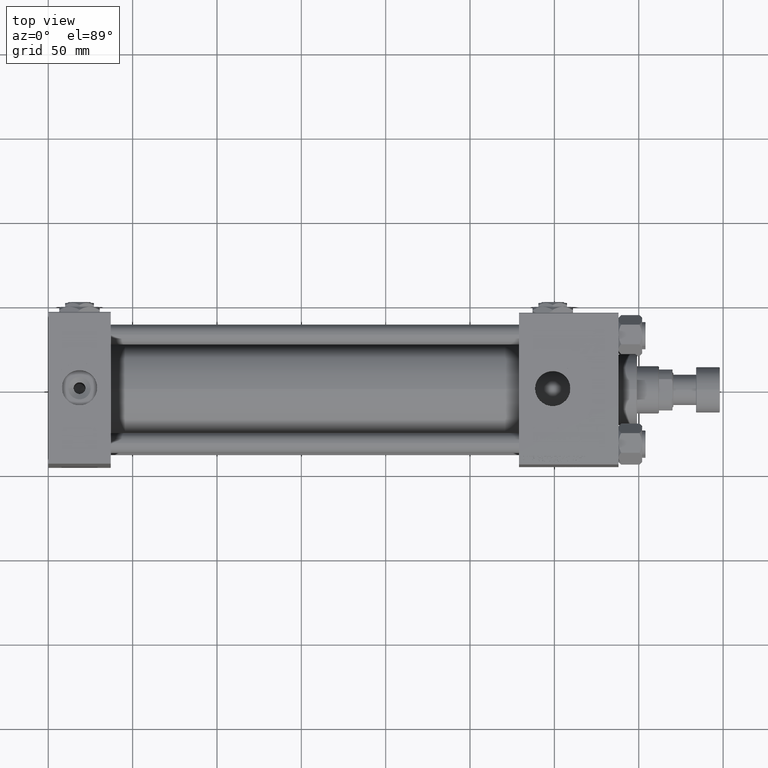
[diagram: clean part render]
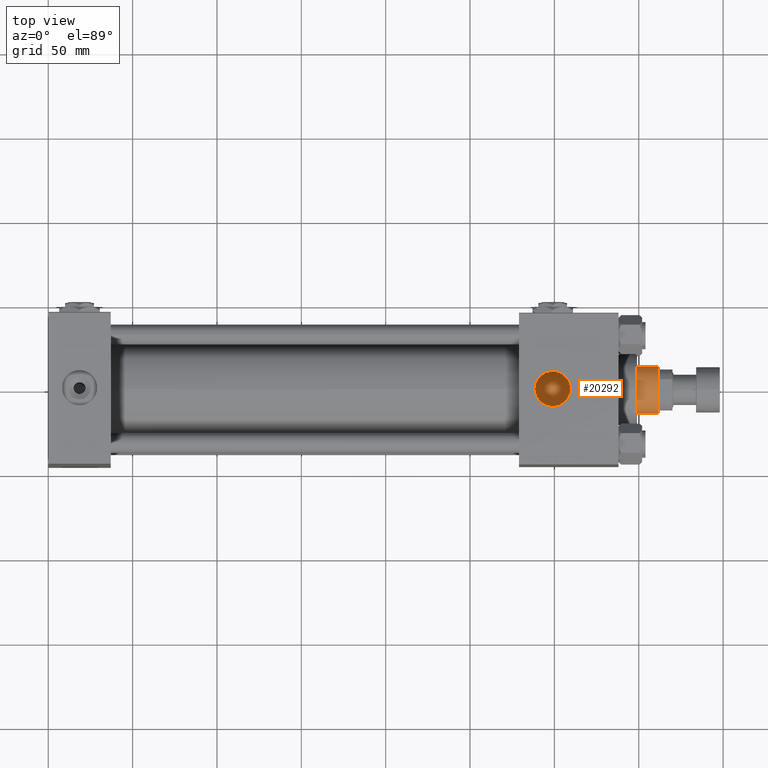
[diagram: same view with one face highlighted and labeled with its STEP entity id]
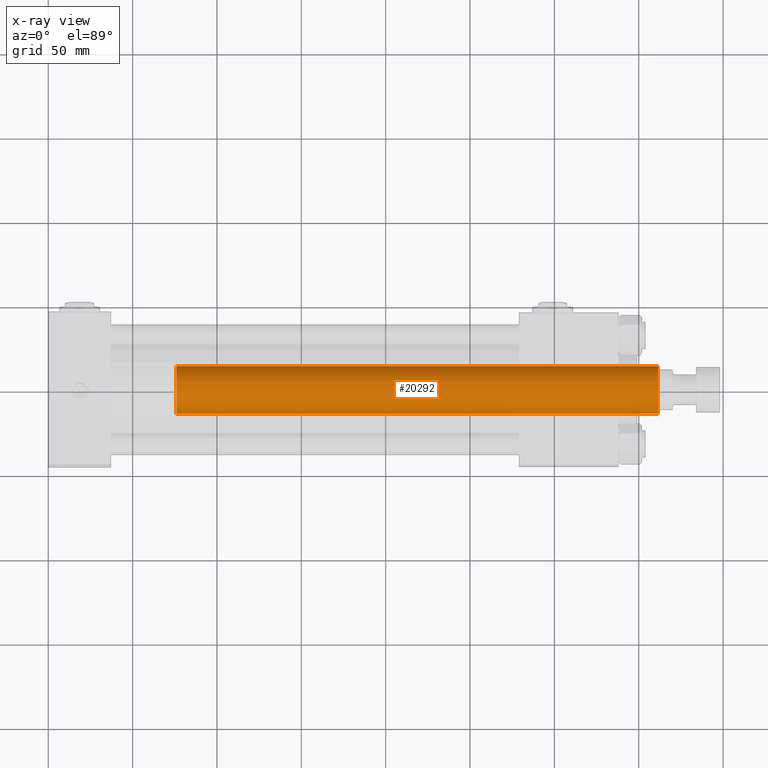
[diagram: x-ray of the same camera — body ghosted, the highlighted face saturated]
A machine part, top view. The second image highlights one B-rep face of the part: STEP entity #20292.
The next image is the same camera in x-ray: the body ghosted, the highlighted face saturated — about 0% of this face is hidden behind the body in this view.
In plain terms, the highlighted cylindrical surface (edge-blend (fillet) strip) has radius 14 mm, axis along (-1, 0, 0).
Its self-contained STEP definition (entity closure, byte-faithful):
#2005 = AXIS2_PLACEMENT_3D ( 'NONE', #8174, #32876, #4732 ) ;
#4732 = DIRECTION ( 'NONE',  ( 1.000000000000000000, 0.000000000000000000, 0.000000000000000000 ) ) ;
#8174 = CARTESIAN_POINT ( 'NONE',  ( 0.000000000000000000, 0.000000000000000000, 39.00000000000000000 ) ) ;
#10744 = ORIENTED_EDGE ( 'NONE', *, *, #47214, .T. ) ;
#11135 = DIRECTION ( 'NONE',  ( -0.000000000000000000, -0.000000000000000000, -1.000000000000000000 ) ) ;
#11752 = DIRECTION ( 'NONE',  ( -0.000000000000000000, -0.000000000000000000, -1.000000000000000000 ) ) ;
#11892 = ORIENTED_EDGE ( 'NONE', *, *, #43393, .T. ) ;
#13547 = DIRECTION ( 'NONE',  ( -0.000000000000000000, -0.000000000000000000, -1.000000000000000000 ) ) ;
#14174 = DIRECTION ( 'NONE',  ( 0.000000000000000000, 0.000000000000000000, -1.000000000000000000 ) ) ;
#14490 = ORIENTED_EDGE ( 'NONE', *, *, #41094, .T. ) ;
#16848 = ORIENTED_EDGE ( 'NONE', *, *, #33841, .F. ) ;
#18057 = CARTESIAN_POINT ( 'NONE',  ( -14.00000000000000178, 0.000000000000000000, 324.9999999999999432 ) ) ;
#18365 = AXIS2_PLACEMENT_3D ( 'NONE', #43553, #11135, #27347 ) ;
#19014 = VERTEX_POINT ( 'NONE', #52125 ) ;
#20292 = ADVANCED_FACE ( 'NONE', ( #47552 ), #34528, .T. ) ;
#21908 = CARTESIAN_POINT ( 'NONE',  ( 14.00000000000000178, 1.714505518806294835E-15, 39.00000000000000000 ) ) ;
#22360 = CIRCLE ( 'NONE', #2005, 14.00000000000000178 ) ;
#22748 = CARTESIAN_POINT ( 'NONE',  ( -14.00000000000000178, 0.000000000000000000, 39.00000000000000000 ) ) ;
#23299 = VECTOR ( 'NONE', #13547, 1000.000000000000000 ) ;
#24515 = LINE ( 'NONE', #36460, #51854 ) ;
#27325 = CIRCLE ( 'NONE', #46017, 14.00000000000000178 ) ;
#27347 = DIRECTION ( 'NONE',  ( -1.000000000000000000, 0.000000000000000000, 0.000000000000000000 ) ) ;
#29591 = DIRECTION ( 'NONE',  ( 1.000000000000000000, 0.000000000000000000, 0.000000000000000000 ) ) ;
#32229 = VERTEX_POINT ( 'NONE', #32458 ) ;
#32458 = CARTESIAN_POINT ( 'NONE',  ( 14.00000000000000178, 1.714505518806294835E-15, 324.4999999999999432 ) ) ;
#32876 = DIRECTION ( 'NONE',  ( 0.000000000000000000, 0.000000000000000000, 1.000000000000000000 ) ) ;
#33841 = EDGE_CURVE ( 'NONE', #32229, #36293, #24515, .T. ) ;
#34528 = CYLINDRICAL_SURFACE ( 'NONE', #18365, 14.00000000000000178 ) ;
#36084 = VERTEX_POINT ( 'NONE', #22748 ) ;
#36293 = VERTEX_POINT ( 'NONE', #21908 ) ;
#36460 = CARTESIAN_POINT ( 'NONE',  ( 14.00000000000000178, 1.714505518806294835E-15, 324.9999999999999432 ) ) ;
#37208 = LINE ( 'NONE', #18057, #23299 ) ;
#41094 = EDGE_CURVE ( 'NONE', #32229, #19014, #27325, .T. ) ;
#41172 = EDGE_LOOP ( 'NONE', ( #16848, #14490, #10744, #11892 ) ) ;
#43393 = EDGE_CURVE ( 'NONE', #36084, #36293, #22360, .T. ) ;
#43553 = CARTESIAN_POINT ( 'NONE',  ( 0.000000000000000000, 0.000000000000000000, 324.9999999999999432 ) ) ;
#46017 = AXIS2_PLACEMENT_3D ( 'NONE', #50591, #14174, #29591 ) ;
#47214 = EDGE_CURVE ( 'NONE', #19014, #36084, #37208, .T. ) ;
#47552 = FACE_OUTER_BOUND ( 'NONE', #41172, .T. ) ;
#50591 = CARTESIAN_POINT ( 'NONE',  ( 0.000000000000000000, 0.000000000000000000, 324.4999999999999432 ) ) ;
#51854 = VECTOR ( 'NONE', #11752, 1000.000000000000000 ) ;
#52125 = CARTESIAN_POINT ( 'NONE',  ( -14.00000000000000178, 0.000000000000000000, 324.4999999999999432 ) ) ;